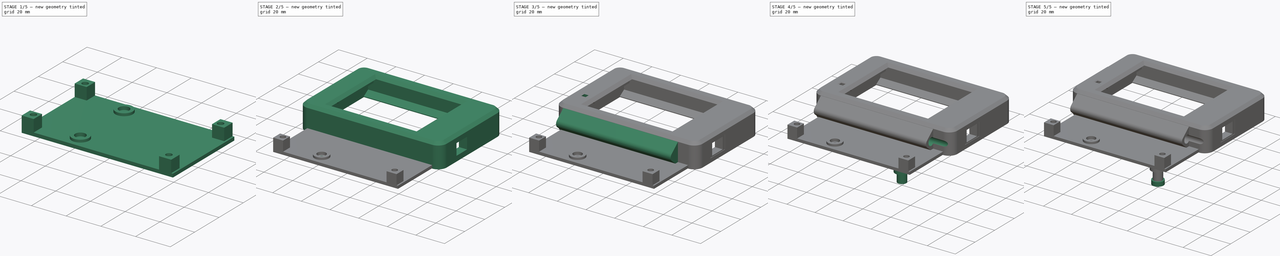
[diagram: build sequence overview — one tinted view per stage of 5, left to right]
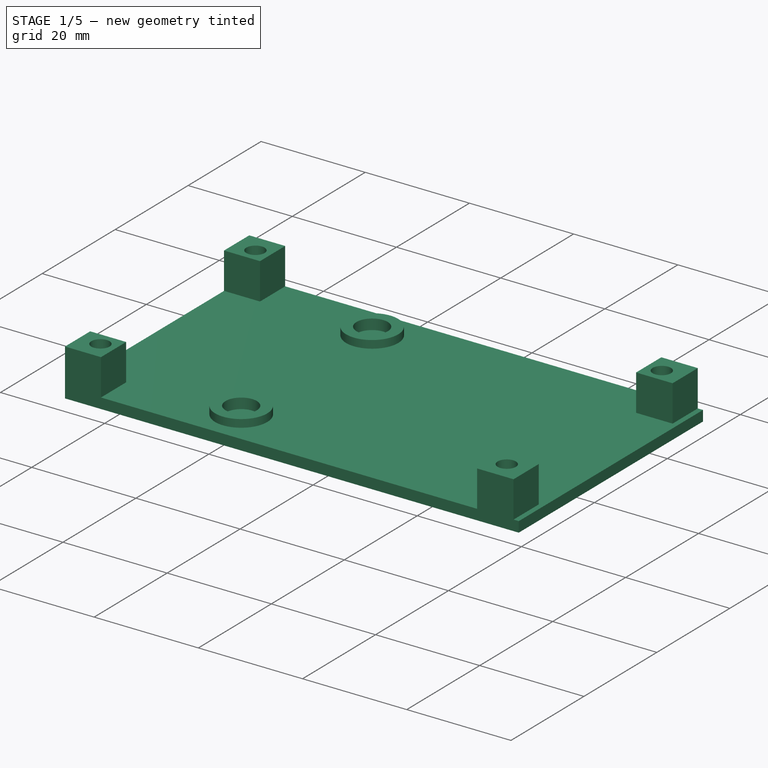
[diagram: stage 1 of 5 — iso view after this stage's code; geometry added in this stage tinted green]
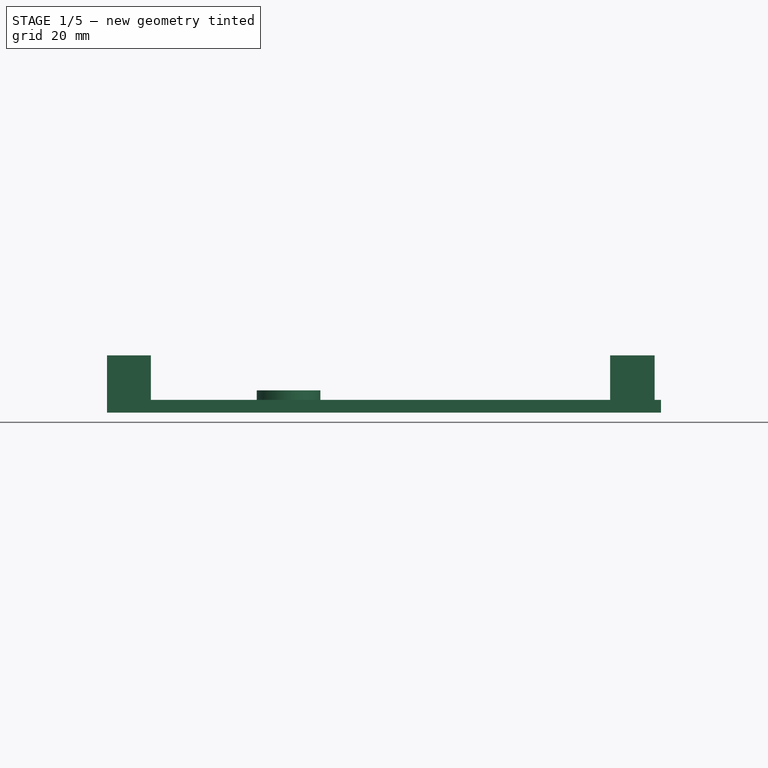
[diagram: stage 1 of 5 — front view after this stage's code; geometry added in this stage tinted green]
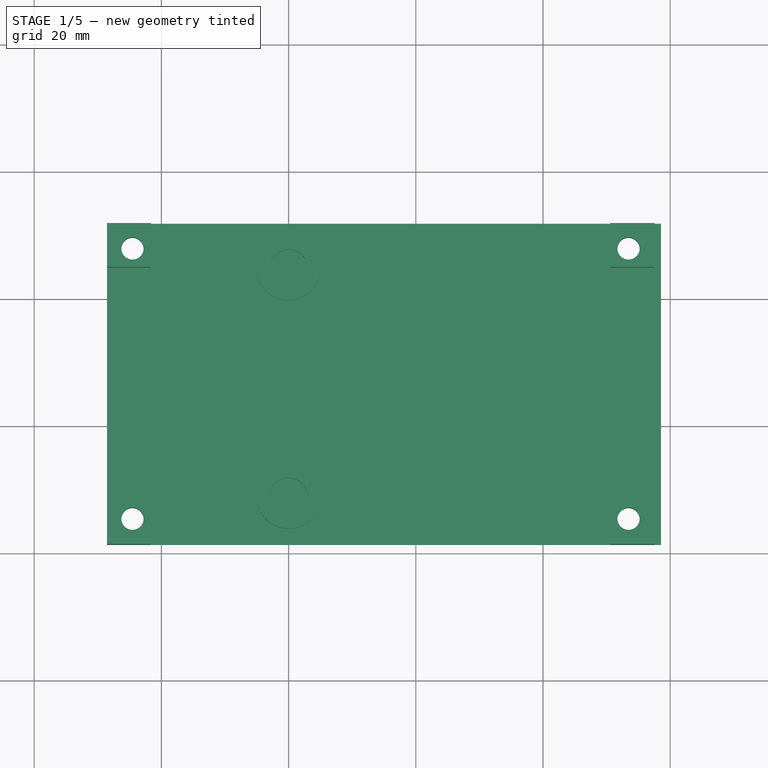
[diagram: stage 1 of 5 — top view after this stage's code; geometry added in this stage tinted green]
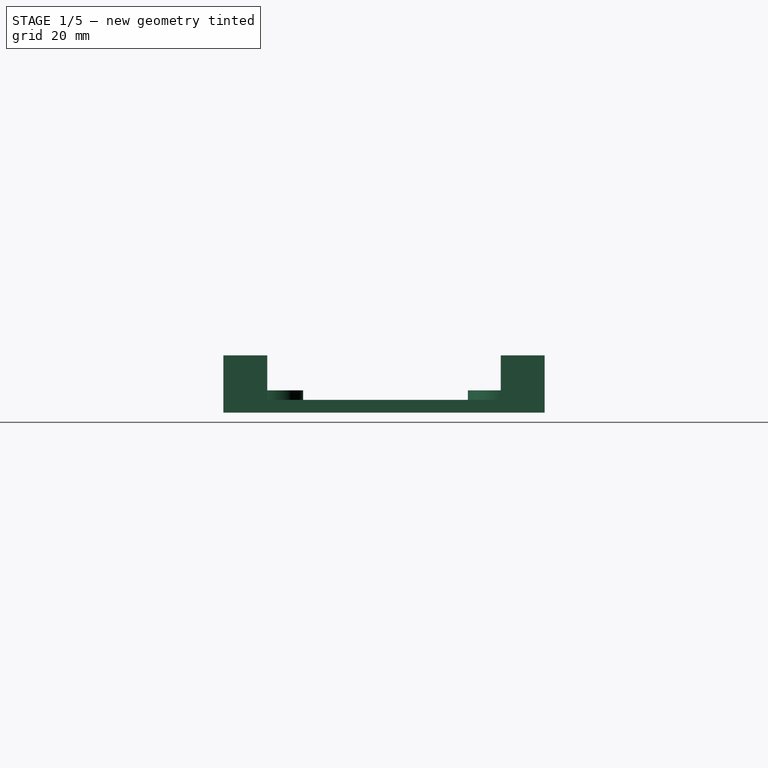
[diagram: stage 1 of 5 — right view after this stage's code; geometry added in this stage tinted green]
FCSTD DOCUMENT  (FreeCAD 0.22R36331 (Git))
Label: ender 3 v3 se cyd mount
License: All rights reserved
LicenseURL: http://en.wikipedia.org/wiki/All_rights_reserved
objects: Sketcher::SketchObject×14, PartDesign::Pocket×9, PartDesign::Pad×5, Part::Feature×5, PartDesign::Body×3, PartDesign::FeatureBase×2, PartDesign::Chamfer×1
note: 54 computed .brp shape members not serialized (recipe doc carries the construction recipe); baked Part::Feature solids carry a one-line shape summary decoded from their .brp

FEATURE [PartDesign::Body] Body009  label="top"
  BaseFeature = -> base
  Group = -> [BaseFeature,Sketch,Pocket,Sketch034,Pocket021,Sketch035,Pocket022,Sketch036,Sketch037,Pad013,Pocket025,Chamfer002]
  Origin = -> Origin009
  Placement = pos=(0,0,0) rot=(1,0,0;3.14159rad)
  Tip = -> Chamfer002
FEATURE [Part::Feature] base002  label="tt_base_step001"
  shape: bbox 87.1 x 50.5 x 9 mm, 52 faces (baked)
FEATURE [Sketcher::SketchObject] Sketch044
  AttachmentOffset = pos=(0,0,1.5) rot=(0,0,1;0rad)
  FullyConstrained = true
  MapMode = 5
  Placement = pos=(0,0,13.5) rot=(0,0,1;0rad)
  expr: .AttachmentOffset.Base.z = Pad015.Length
  expr: Constraints[4] = Sketch043.Constraints.Between
  expr: Constraints[5] = Sketch043.Constraints.FromCenter
  expr: Constraints[6] = Sketch043.Constraints.Center
  sketch-geometry (3):
    g0: Circle CenterX=-40 CenterY=24.78 CenterZ=0 NormalX=0 NormalY=0 NormalZ=1 AngleXU=0 Radius=3
    g1: Circle CenterX=-40 CenterY=-11.12 CenterZ=0 NormalX=0 NormalY=0 NormalZ=1 AngleXU=0 Radius=3
    g2: GeomPoint X=-40 Y=6.83 Z=0
  constraints (7):
    c: Equal(g1,g0)
    c: Diameter(g0) = 6
    c: Vertical(g0,g1)
    c: Symmetric(g0,g1,g2)
    c: DistanceY(g1,g0) = 35.9
    c: DistanceX(g2,g-1) = 40
    c: DistanceY(g-1,g2) = 6.83
FEATURE [Sketcher::SketchObject] Sketch045
  FullyConstrained = true
  MapMode = 5
  Placement = pos=(0,0,12) rot=(0,0,1;0rad)
  expr: Constraints[4] = Sketch043.Constraints.Between
  expr: Constraints[5] = Sketch043.Constraints.Center
  expr: Constraints[6] = Sketch043.Constraints.FromCenter
  sketch-geometry (3):
    g0: Circle CenterX=-40 CenterY=24.78 CenterZ=0 NormalX=0 NormalY=0 NormalZ=1 AngleXU=0 Radius=1.75
    g1: Circle CenterX=-40 CenterY=-11.12 CenterZ=0 NormalX=0 NormalY=0 NormalZ=1 AngleXU=0 Radius=1.75
    g2: GeomPoint X=-40 Y=6.83 Z=0
  constraints (7):
    c: Equal(g1,g0)
    c: Diameter(g0) = 3.5
    c: Symmetric(g0,g1,g2)
    c: Vertical(g0,g2)
    c: DistanceY(g1,g0) = 35.9
    c: DistanceY(g-1,g2) = 6.83
    c: DistanceX(g2,g-1) = 40
FEATURE [Part::Feature] base003  label="tt_base_step002"
  shape: bbox 87.1 x 50.5 x 9 mm, 52 faces (baked)
FEATURE [PartDesign::FeatureBase] BaseFeature009
  BaseFeature = -> base003
  Suppressed = false
FEATURE [Sketcher::SketchObject] Sketch043
  AttachmentSupport = -> [BaseFeature009]
  ExternalGeometry = -> [BaseFeature009]
  FullyConstrained = true
  MapMode = 5
  Placement = pos=(0,0,12) rot=(0,0,1;0rad)
  sketch-geometry (3):
    g0: Circle CenterX=-40 CenterY=24.78 CenterZ=0 NormalX=0 NormalY=0 NormalZ=1 AngleXU=0 Radius=5
    g1: Circle CenterX=-40 CenterY=-11.12 CenterZ=0 NormalX=0 NormalY=0 NormalZ=1 AngleXU=0 Radius=5
    g2: GeomPoint X=-40 Y=6.83 Z=0
  constraints (7):
    c: DistanceY(g1,g0) = 35.9  'Between'
    c: Equal(g1,g0)
    c: Diameter(g0) = 10
    c: Symmetric(g0,g1,g2)
    c: Vertical(g0,g2)
    c: DistanceX(g2,g-1) = 40  'FromCenter'
    c: DistanceY(g-1,g2) = 6.83  'Center'
FEATURE [PartDesign::Pad] Pad015
  BaseFeature = -> BaseFeature009
  Direction = (0,0,1)
  Length = 1.5
  Length2 = 10
  Profile = -> Sketch043
  ReferenceAxis = -> Sketch043 [N_Axis]
  Suppressed = false
  Type = 0
FEATURE [PartDesign::Pocket] Pocket029
  BaseFeature = -> Pad015
  Direction = (0,0,-1)
  Length = 2
  Length2 = 5
  Profile = -> Sketch044
  ReferenceAxis = -> Sketch044 [N_Axis]
  Suppressed = false
  Type = 0
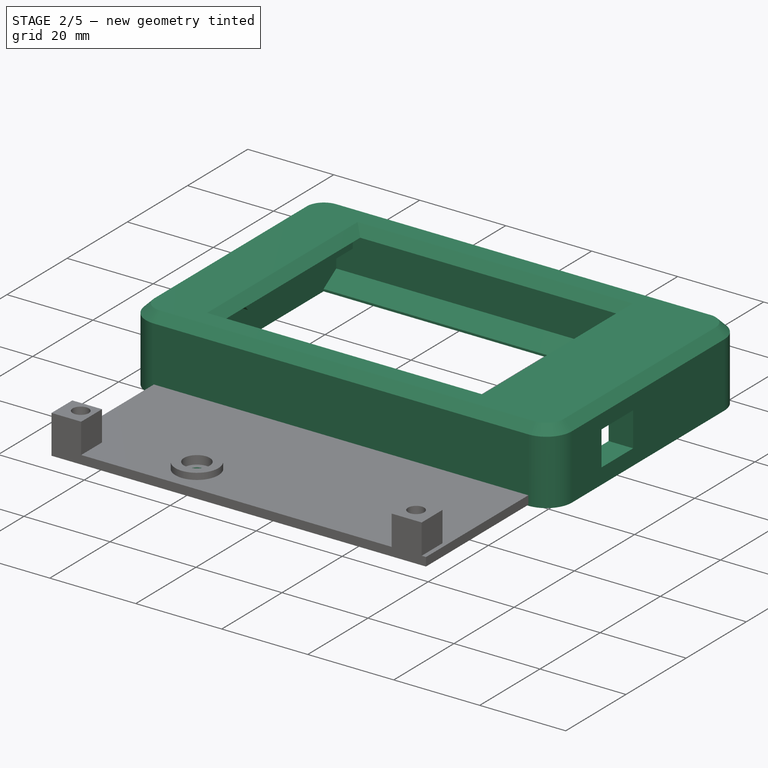
[diagram: stage 2 of 5 — iso view after this stage's code; geometry added in this stage tinted green]
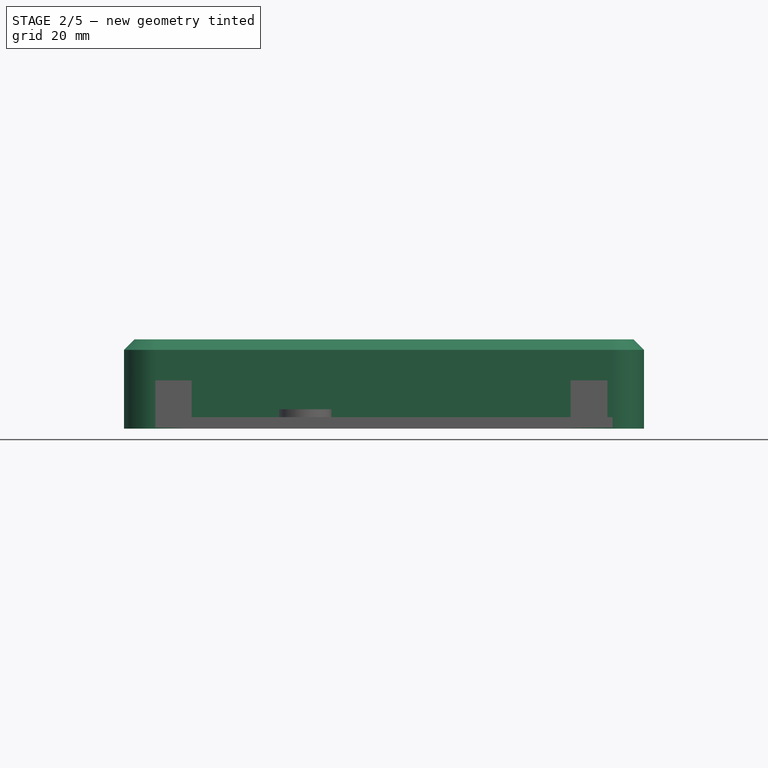
[diagram: stage 2 of 5 — front view after this stage's code; geometry added in this stage tinted green]
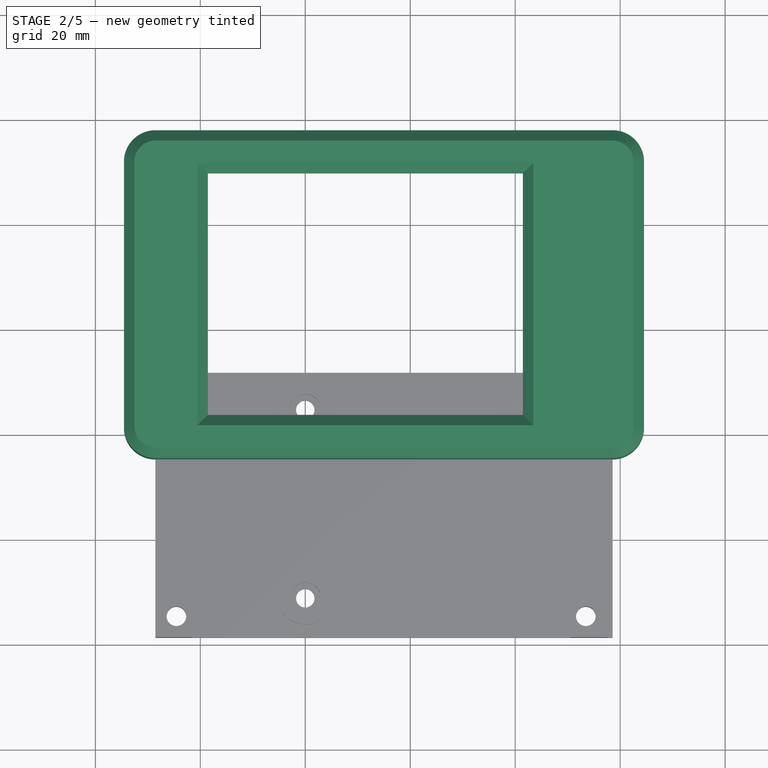
[diagram: stage 2 of 5 — top view after this stage's code; geometry added in this stage tinted green]
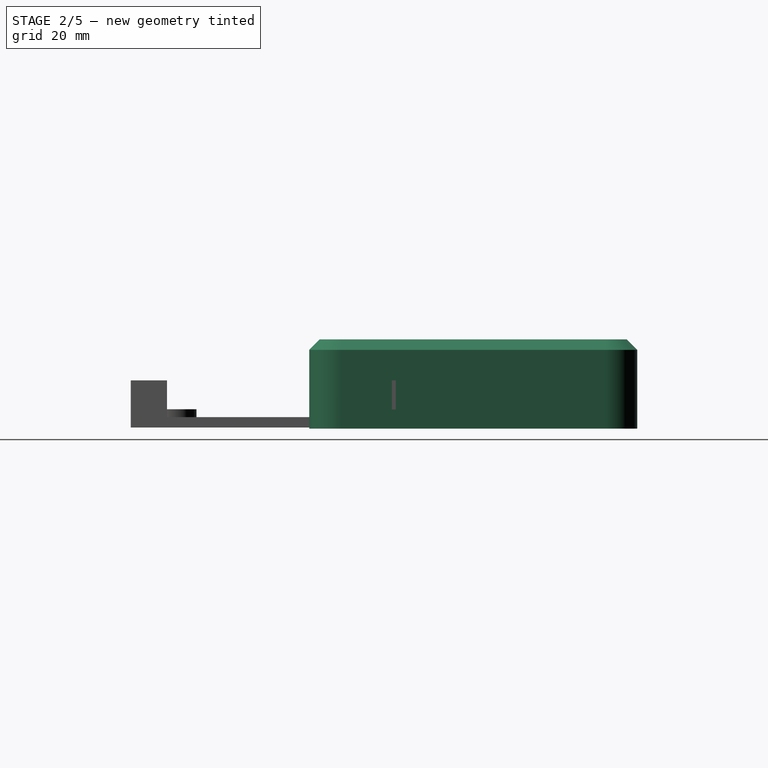
[diagram: stage 2 of 5 — right view after this stage's code; geometry added in this stage tinted green]
FEATURE [PartDesign::Body] Body  label="peg"
  Group = -> [Sketch008,Pad,Sketch009,Pad002,Sketch010,Pad003,Sketch011,Pocket013,Sketch027,Pocket016]
  Origin = -> Origin
  Placement = pos=(0,0,0) rot=(1,0,0;3.14159rad)
  Tip = -> Pocket016
FEATURE [Part::Feature] base  label="tt_top_step"
  shape: bbox 99.1 x 62.5 x 17 mm, 91 faces (baked)
FEATURE [Part::Feature] base001  label="tt_base_step"
  shape: bbox 87.1 x 50.5 x 9 mm, 52 faces (baked)
FEATURE [PartDesign::FeatureBase] BaseFeature
  BaseFeature = -> base
  Suppressed = false
FEATURE [Sketcher::SketchObject] Sketch
  AttachmentSupport = -> [BaseFeature]
  ExternalGeometry = -> [BaseFeature]
  FullyConstrained = true
  MapMode = 5
  Placement = pos=(18.85,0,0) rot=(0.57735,-0.57735,-0.57735;2.0944rad)
  sketch-geometry (5):
    g0: LineSegment StartX=-41.6 StartY=21.45 StartZ=0 EndX=-41.6 EndY=13.45 EndZ=0
    g1: LineSegment StartX=-41.6 StartY=13.45 StartZ=0 EndX=-31.1 EndY=13.45 EndZ=0
    g2: LineSegment StartX=-31.1 StartY=13.45 StartZ=0 EndX=-31.1 EndY=21.45 EndZ=0
    g3: LineSegment StartX=-31.1 StartY=21.45 StartZ=0 EndX=-41.6 EndY=21.45 EndZ=0
    g4: GeomPoint X=-36.35 Y=17.45 Z=0
  constraints (13):
    c: Coincident(g0,g1)
    c: Coincident(g1,g2)
    c: Coincident(g2,g3)
    c: Coincident(g3,g0)
    c: Vertical(g0)
    c: Vertical(g2)
    c: Horizontal(g1)
    c: Horizontal(g3)
    c: DistanceX(g1,g1) = 10.5
    c: DistanceY(g0,g0) = 8
    c: Symmetric(g0,g1,g4)
    c: DistanceX(g4,g-4) = 19.5
    c: DistanceY(g4,g-3) = 3.15
FEATURE [PartDesign::Pocket] Pocket
  BaseFeature = -> BaseFeature
  Direction = (1,0,0)
  Length = 5
  Length2 = 5
  Profile = -> Sketch
  ReferenceAxis = -> Sketch [N_Axis]
  Suppressed = false
  Type = 1
FEATURE [PartDesign::Pocket] Pocket030
  BaseFeature = -> Pocket029
  Direction = (0,0,-1)
  Length = 5
  Length2 = 5
  Profile = -> Sketch045
  ReferenceAxis = -> Sketch045 [N_Axis]
  Suppressed = false
  Type = 0
FEATURE [Sketcher::SketchObject] Sketch046
  AttachmentOffset = pos=(0,0,7) rot=(0,0,1;0rad)
  AttachmentSupport = -> [Pad015]
  FullyConstrained = false
  MapMode = 5
  Placement = pos=(0,0,19) rot=(0,0,1;0rad)
  sketch-geometry (4):
    g0: Circle CenterX=-64.55 CenterY=27.85 CenterZ=0 NormalX=0 NormalY=0 NormalZ=1 AngleXU=0 Radius=1.875
    g1: Circle CenterX=-64.55 CenterY=-14.65 CenterZ=0 NormalX=0 NormalY=0 NormalZ=1 AngleXU=0 Radius=1.875
    g2: Circle CenterX=13.45 CenterY=27.85 CenterZ=0 NormalX=0 NormalY=0 NormalZ=1 AngleXU=0 Radius=1.875
    g3: Circle CenterX=13.45 CenterY=-14.65 CenterZ=0 NormalX=0 NormalY=0 NormalZ=1 AngleXU=0 Radius=1.875
  constraints (4):
    c: Equal(g3,g2)
    c: Equal(g2,g0)
    c: Equal(g0,g1)
    c: Diameter(g0) = 3.75
FEATURE [PartDesign::Pocket] Pocket031
  BaseFeature = -> Pocket030
  Direction = (0,0,-1)
  Length = 5
  Length2 = 5
  Profile = -> Sketch046
  ReferenceAxis = -> Sketch046 [N_Axis]
  Refine = true
  Suppressed = false
  Type = 1
FEATURE [PartDesign::Body] Body011  label="base"
  BaseFeature = -> base003
  Group = -> [BaseFeature009,Sketch043,Pad015,Sketch044,Sketch045,Sketch046,Pocket029,Pocket030,Pocket031]
  Origin = -> Origin011
  Tip = -> Pocket031
FEATURE [Part::Feature] base004  label="tt_base_step003"
  shape: bbox 87.1 x 50.5 x 9 mm, 52 faces (baked)
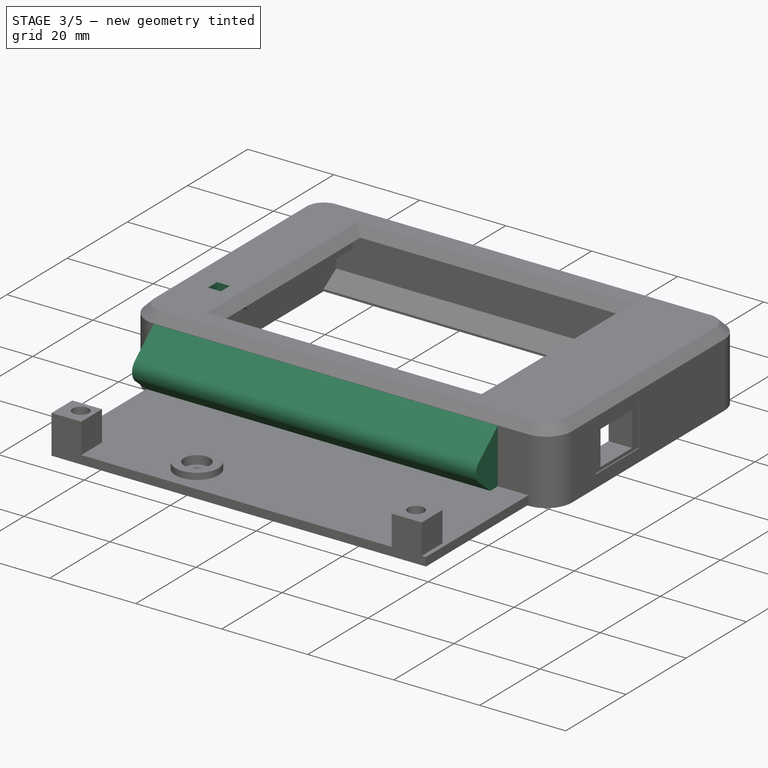
[diagram: stage 3 of 5 — iso view after this stage's code; geometry added in this stage tinted green]
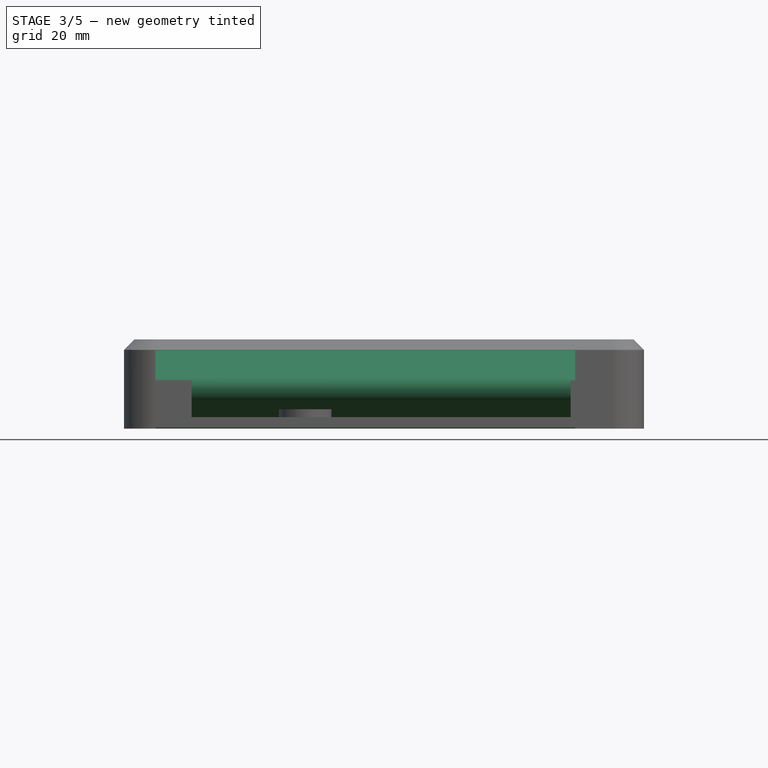
[diagram: stage 3 of 5 — front view after this stage's code; geometry added in this stage tinted green]
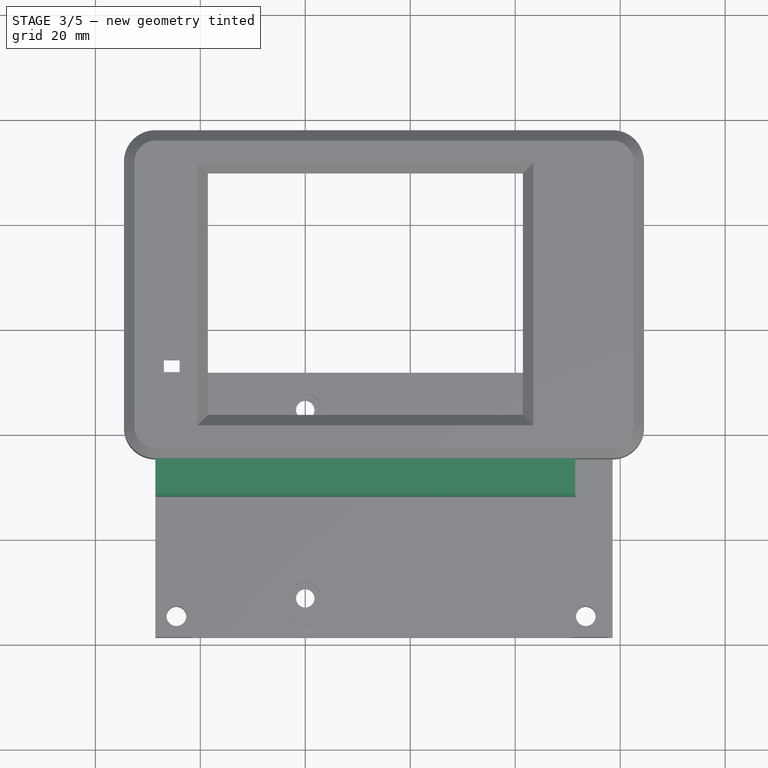
[diagram: stage 3 of 5 — top view after this stage's code; geometry added in this stage tinted green]
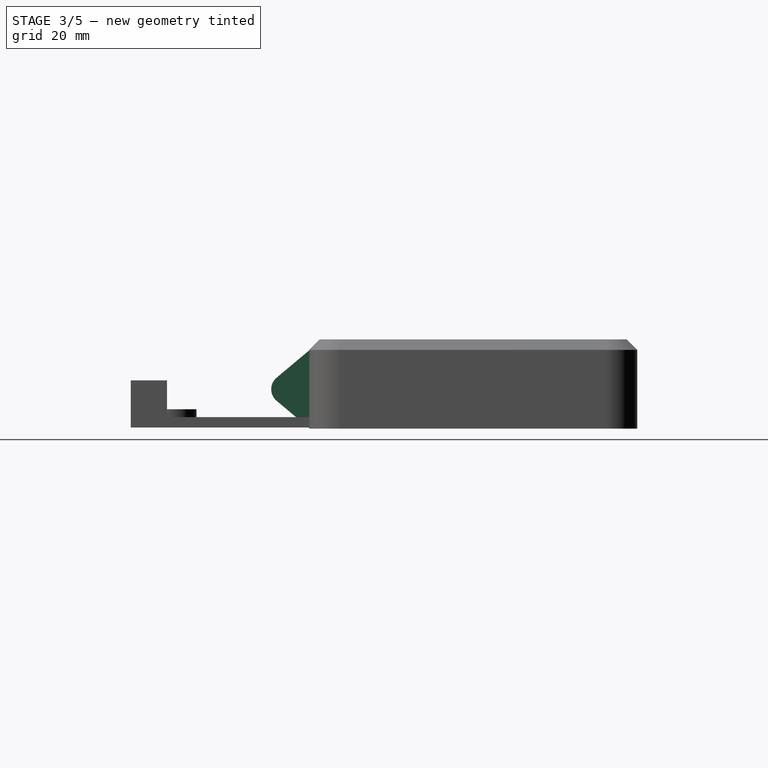
[diagram: stage 3 of 5 — right view after this stage's code; geometry added in this stage tinted green]
FEATURE [Sketcher::SketchObject] Sketch034
  AttachmentSupport = -> [Pocket]
  ExternalGeometry = -> [Pocket]
  FullyConstrained = true
  MapMode = 5
  Placement = pos=(24.55,0,0) rot=(0.57735,0.57735,0.57735;2.0944rad)
  sketch-geometry (5):
    g0: GeomPoint X=36.35 Y=17.45 Z=0
    g1: LineSegment StartX=29.1 StartY=22.2 StartZ=0 EndX=29.1 EndY=12.7 EndZ=0
    g2: LineSegment StartX=29.1 StartY=12.7 StartZ=0 EndX=43.6 EndY=12.7 EndZ=0
    g3: LineSegment StartX=43.6 StartY=12.7 StartZ=0 EndX=43.6 EndY=22.2 EndZ=0
    g4: LineSegment StartX=43.6 StartY=22.2 StartZ=0 EndX=29.1 EndY=22.2 EndZ=0
  constraints (12):
    c: Symmetric(g-3,g-4,g0)
    c: Coincident(g1,g2)
    c: Coincident(g2,g3)
    c: Coincident(g3,g4)
    c: Coincident(g4,g1)
    c: Vertical(g1)
    c: Vertical(g3)
    c: Horizontal(g2)
    c: Horizontal(g4)
    c: DistanceX(g2,g2) = 14.5
    c: DistanceY(g3,g3) = 9.5
    c: Symmetric(g2,g1,g0)
FEATURE [PartDesign::Pocket] Pocket021
  BaseFeature = -> Pocket
  Direction = (-1,0,0)
  Length = 0.25
  Length2 = 5
  Profile = -> Sketch034
  ReferenceAxis = -> Sketch034 [N_Axis]
  Suppressed = false
  Type = 0
FEATURE [Sketcher::SketchObject] Sketch035
  AttachmentSupport = -> [Pocket021]
  ExternalGeometry = -> [Pocket021]
  FullyConstrained = true
  MapMode = 5
  Placement = pos=(0,0,22.6) rot=(1,0,0;3.14159rad)
  sketch-geometry (5):
    g0: LineSegment StartX=-66.95 StartY=-31.05 StartZ=0 EndX=-66.95 EndY=-34.05 EndZ=0
    g1: LineSegment StartX=-66.95 StartY=-34.05 StartZ=0 EndX=-63.95 EndY=-34.05 EndZ=0
    g2: LineSegment StartX=-63.95 StartY=-34.05 StartZ=0 EndX=-63.95 EndY=-31.05 EndZ=0
    g3: LineSegment StartX=-63.95 StartY=-31.05 StartZ=0 EndX=-66.95 EndY=-31.05 EndZ=0
    g4: GeomPoint X=-65.45 Y=-32.55 Z=0
  constraints (12):
    c: Coincident(g0,g1)
    c: Coincident(g1,g2)
    c: Coincident(g2,g3)
    c: Coincident(g3,g0)
    c: Vertical(g0)
    c: Vertical(g2)
    c: Horizontal(g1)
    c: Horizontal(g3)
    c: Symmetric(g-5,g-4,g4)
    c: Symmetric(g0,g1,g4)
    c: DistanceY(g2,g2) = 3
    c: Equal(g1,g2)
FEATURE [PartDesign::Pocket] Pocket022
  BaseFeature = -> Pocket021
  Direction = (0,0,1)
  Length = 5
  Length2 = 5
  Profile = -> Sketch035
  ReferenceAxis = -> Sketch035 [N_Axis]
  Suppressed = false
  Type = 1
FEATURE [Sketcher::SketchObject] Sketch036
  AttachmentOffset = pos=(0,0,-6) rot=(0,0,1;0rad)
  AttachmentSupport = -> [Pocket022]
  ExternalGeometry = -> [Pocket022]
  FullyConstrained = true
  MapMode = 5
  Placement = pos=(-68.55,0,0) rot=(0.57735,-0.57735,-0.57735;2.0944rad)
  sketch-geometry (5):
    g0: LineSegment StartX=-15.45 StartY=24.8 StartZ=0 EndX=-15.45 EndY=9.8 EndZ=0
    g1: LineSegment StartX=-15.45 StartY=9.8 StartZ=0 EndX=-9.13654 EndY=15.0976 EndZ=0
    g2: LineSegment StartX=-9.13654 StartY=19.5024 StartZ=0 EndX=-15.45 EndY=24.8 EndZ=0
    g3: ArcOfCircle CenterX=-10.9846 CenterY=17.3 CenterZ=0 NormalX=0 NormalY=0 NormalZ=1 AngleXU=0 Radius=2.875 StartAngle=5.41052 EndAngle=7.15585
    g4: GeomPoint X=-6.51185 Y=17.3 Z=0
  constraints (13):
    c: PointOnObject(g0,g-4)
    c: PointOnObject(g0,g-5)
    c: Vertical(g0)
    c: Coincident(g0,g1)
    c: Coincident(g2,g0)
    c: Angle(g1,g0) = 0.872665
    c: Angle(g0,g2) = 0.872665
    c: PointOnObject(g4,g2)
    c: PointOnObject(g4,g1)
    c: Tangent(g2,g3) = -1.5708
    c: Tangent(g1,g3) = -1.5708
    c: Radius(g3) = 2.875
    c: DistanceX(g-5,g0) = -0.1
FEATURE [PartDesign::Pad] Pad013
  BaseFeature = -> Pocket022
  Direction = (-1,0,0)
  Length = 80
  Length2 = 10
  Profile = -> Sketch036
  ReferenceAxis = -> Sketch036 [N_Axis]
  Reversed = true
  Suppressed = false
  Type = 0
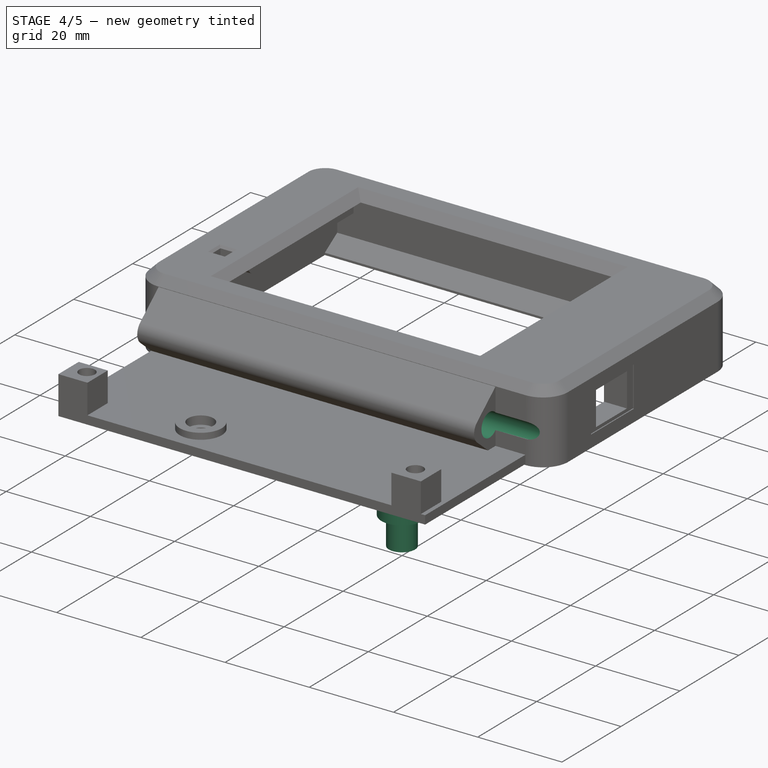
[diagram: stage 4 of 5 — iso view after this stage's code; geometry added in this stage tinted green]
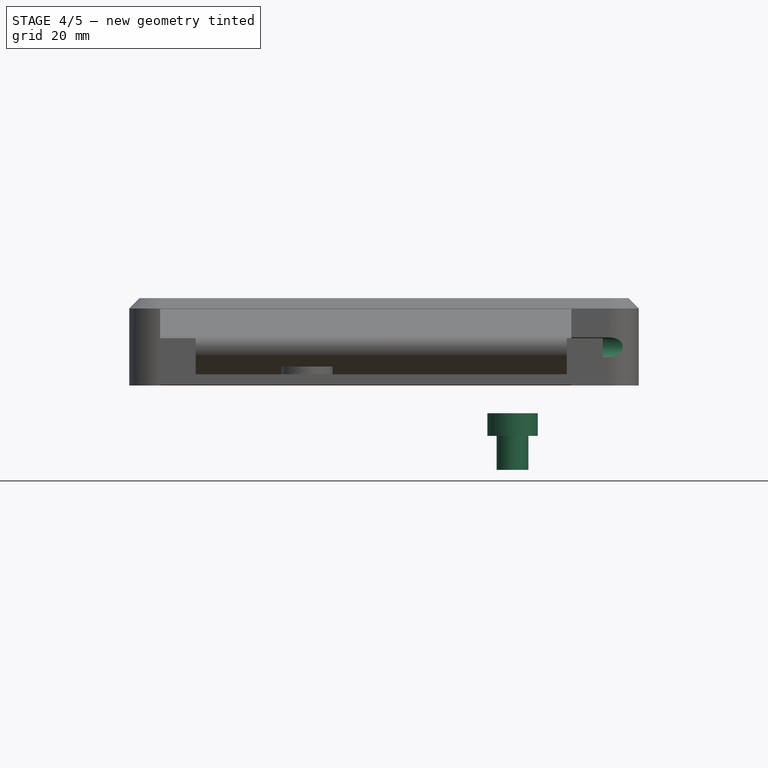
[diagram: stage 4 of 5 — front view after this stage's code; geometry added in this stage tinted green]
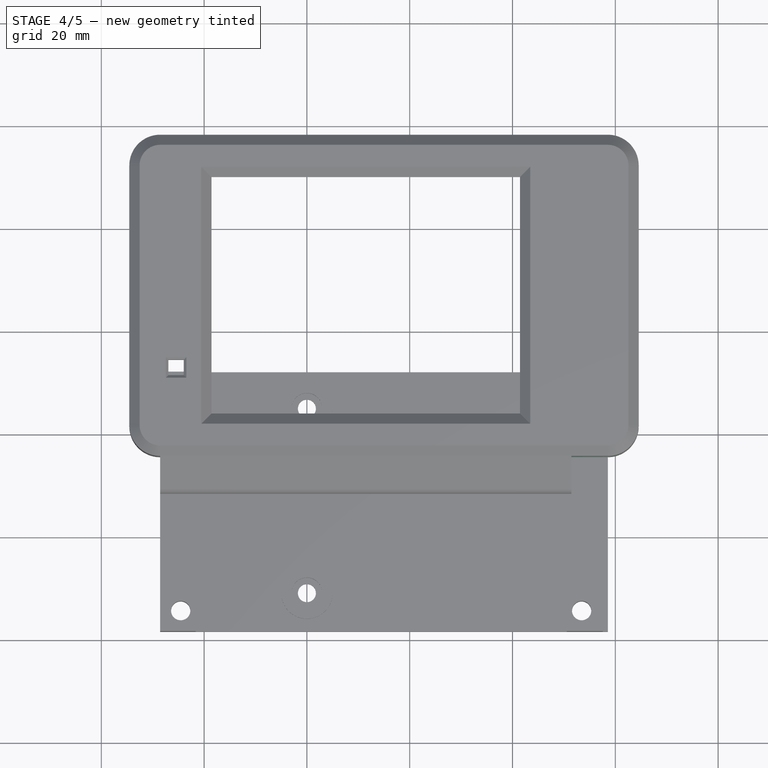
[diagram: stage 4 of 5 — top view after this stage's code; geometry added in this stage tinted green]
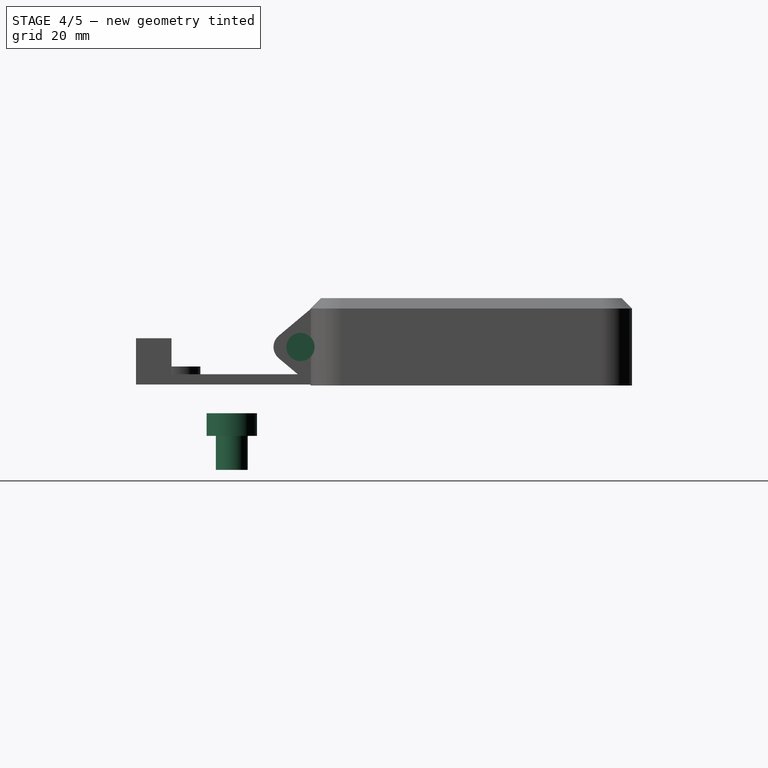
[diagram: stage 4 of 5 — right view after this stage's code; geometry added in this stage tinted green]
FEATURE [Sketcher::SketchObject] Sketch008
  AttachmentSupport = -> [XY_Plane]
  FullyConstrained = true
  MapMode = 5
  sketch-geometry (1):
    g0: Circle CenterX=0 CenterY=0 CenterZ=0 NormalX=0 NormalY=0 NormalZ=1 AngleXU=0 Radius=4.9
  constraints (2):
    c: Coincident(g0,g-1)
    c: Diameter(g0) = 9.8
FEATURE [PartDesign::Pad] Pad
  Direction = (0,0,1)
  Length = 4.4
  Length2 = 10
  Profile = -> Sketch008
  ReferenceAxis = -> Sketch008 [N_Axis]
  Suppressed = false
  Type = 0
FEATURE [Sketcher::SketchObject] Sketch009
  AttachmentSupport = -> [Pad]
  FullyConstrained = true
  MapMode = 5
  Placement = pos=(0,0,0) rot=(1,0,0;3.14159rad)
  sketch-geometry (1):
    g0: Circle CenterX=0 CenterY=0 CenterZ=0 NormalX=0 NormalY=0 NormalZ=1 AngleXU=0 Radius=3.1
  constraints (2):
    c: Coincident(g0,g-1)
    c: Diameter(g0) = 6.2
FEATURE [PartDesign::Pad] Pad002
  BaseFeature = -> Pad
  Direction = (0,0,-1)
  Length = 6.6
  Length2 = 10
  Profile = -> Sketch009
  ReferenceAxis = -> Sketch009 [N_Axis]
  Suppressed = false
  Type = 0
FEATURE [Sketcher::SketchObject] Sketch037
  AttachmentOffset = pos=(0,0,-2) rot=(0,0,1;0rad)
  AttachmentSupport = -> [Pad013]
  ExternalGeometry = -> [Pad013]
  FullyConstrained = true
  MapMode = 5
  Placement = pos=(-66.55,0,0) rot=(0.57735,-0.57735,-0.57735;2.0944rad)
  sketch-geometry (2):
    g0: Circle CenterX=-13.35 CenterY=17.3 CenterZ=0 NormalX=0 NormalY=0 NormalZ=1 AngleXU=0 Radius=2.75
    g1: GeomPoint X=-15.35 Y=17.3 Z=0
  constraints (4):
    c: Diameter(g0) = 5.5
    c: Symmetric(g-3,g-3,g1)
    c: Horizontal(g0,g1)
    c: DistanceX(g-3,g0) = 2
FEATURE [PartDesign::Pocket] Pocket025
  BaseFeature = -> Pad013
  Direction = (1,0,0)
  Length = 5
  Length2 = 5
  Profile = -> Sketch037
  ReferenceAxis = -> Sketch037 [N_Axis]
  Suppressed = false
  Type = 1
FEATURE [PartDesign::Chamfer] Chamfer002
  Angle = 45
  Base = -> Pocket025 [Edge164,Edge163,Edge161,Edge162]
  BaseFeature = -> Pocket025
  ChamferType = 0
  FlipDirection = false
  Refine = true
  Size = 0.5
  Size2 = 1
  SupportTransform = false
  Suppressed = false
  UseAllEdges = false
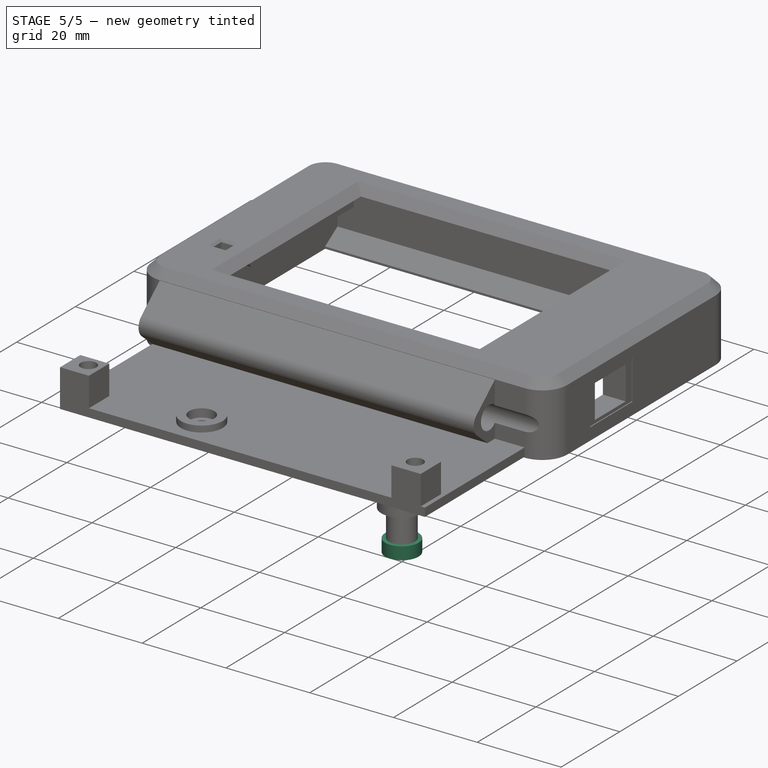
[diagram: stage 5 of 5 — iso view after this stage's code; geometry added in this stage tinted green]
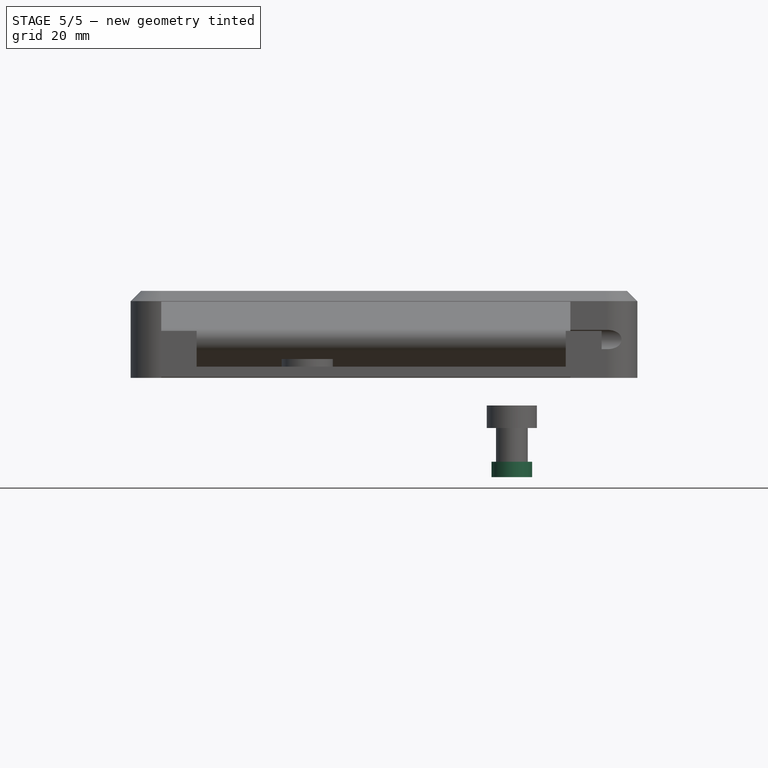
[diagram: stage 5 of 5 — front view after this stage's code; geometry added in this stage tinted green]
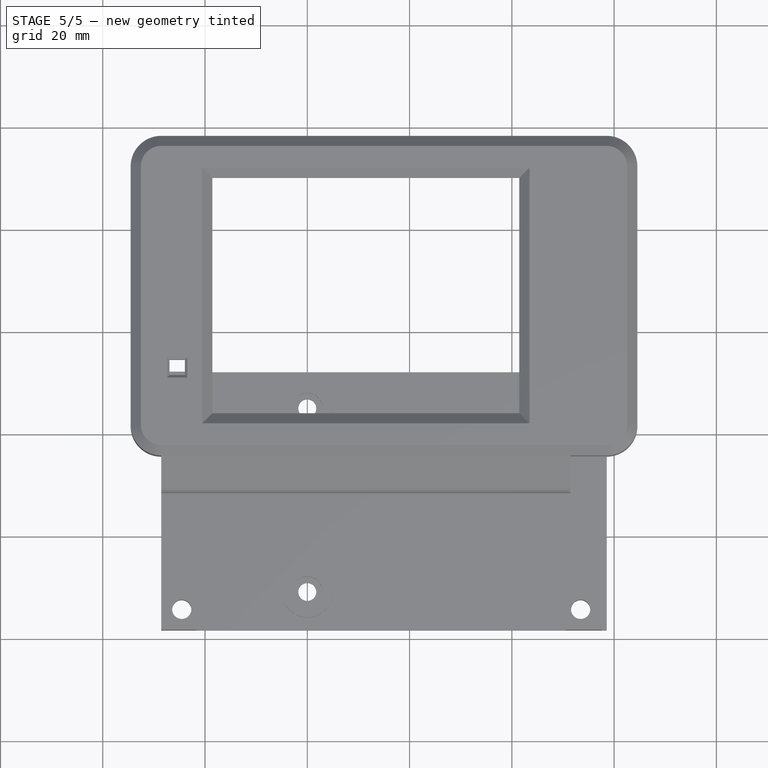
[diagram: stage 5 of 5 — top view after this stage's code; geometry added in this stage tinted green]
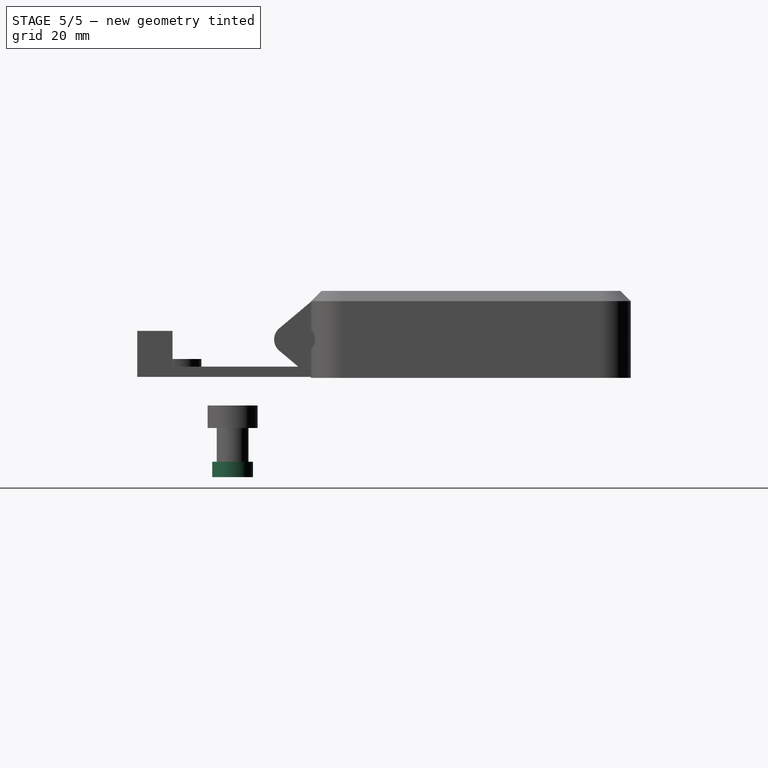
[diagram: stage 5 of 5 — right view after this stage's code; geometry added in this stage tinted green]
FEATURE [Sketcher::SketchObject] Sketch010
  AttachmentSupport = -> [Pad002]
  FullyConstrained = true
  MapMode = 5
  Placement = pos=(0,0,-6.6) rot=(1,0,0;3.14159rad)
  sketch-geometry (1):
    g0: Circle CenterX=0 CenterY=0 CenterZ=0 NormalX=0 NormalY=0 NormalZ=1 AngleXU=0 Radius=3.975
  constraints (2):
    c: Coincident(g0,g-1)
    c: Diameter(g0) = 7.95
FEATURE [PartDesign::Pad] Pad003
  BaseFeature = -> Pad002
  Direction = (0,0,-1)
  Length = 3
  Length2 = 10
  Profile = -> Sketch010
  ReferenceAxis = -> Sketch010 [N_Axis]
  Suppressed = false
  Type = 0
FEATURE [Sketcher::SketchObject] Sketch011
  AttachmentSupport = -> [Pad003]
  FullyConstrained = true
  MapMode = 5
  Placement = pos=(0,0,4.4) rot=(0,0,1;0rad)
  sketch-geometry (1):
    g0: Circle CenterX=0 CenterY=0 CenterZ=0 NormalX=0 NormalY=0 NormalZ=1 AngleXU=0 Radius=1.45
  constraints (2):
    c: Coincident(g0,g-1)
    c: Diameter(g0) = 2.9
FEATURE [PartDesign::Pocket] Pocket013
  BaseFeature = -> Pad003
  Direction = (0,0,-1)
  Length = 12
  Length2 = 5
  Profile = -> Sketch011
  ReferenceAxis = -> Sketch011 [N_Axis]
  Suppressed = false
  Type = 0
FEATURE [Sketcher::SketchObject] Sketch027
  AttachmentSupport = -> [Pocket013]
  FullyConstrained = true
  MapMode = 5
  Placement = pos=(0,0,4.4) rot=(0,0,1;0rad)
  sketch-geometry (1):
    g0: Circle CenterX=0 CenterY=0 CenterZ=0 NormalX=0 NormalY=0 NormalZ=1 AngleXU=0 Radius=1.75
  constraints (2):
    c: Coincident(g0,g-1)
    c: Diameter(g0) = 3.5
FEATURE [PartDesign::Pocket] Pocket016
  BaseFeature = -> Pocket013
  Direction = (0,0,-1)
  Length = 5
  Length2 = 5
  Profile = -> Sketch027
  ReferenceAxis = -> Sketch027 [N_Axis]
  Suppressed = false
  Type = 0
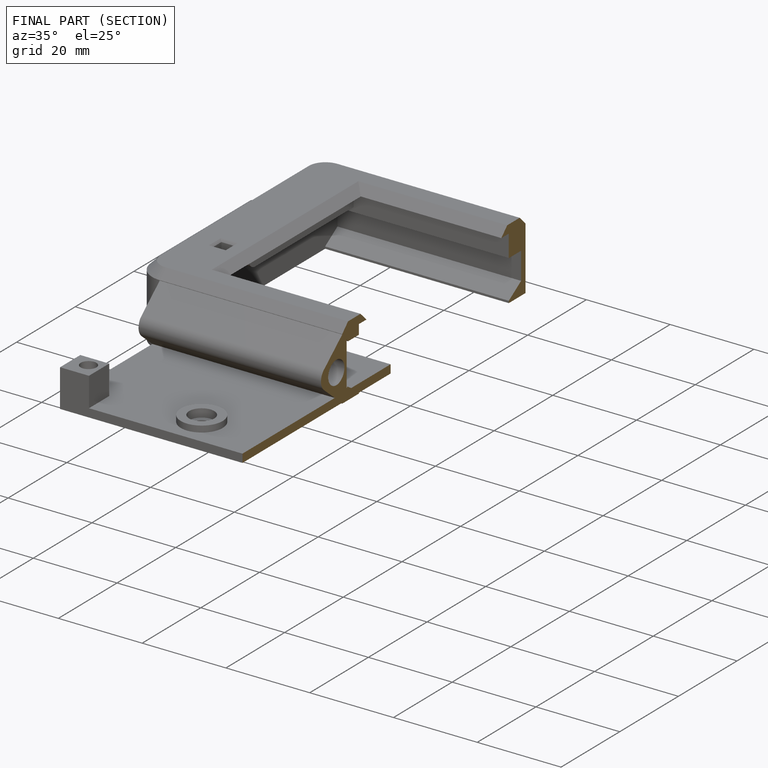
[diagram: finished part — half-section view (interior)]
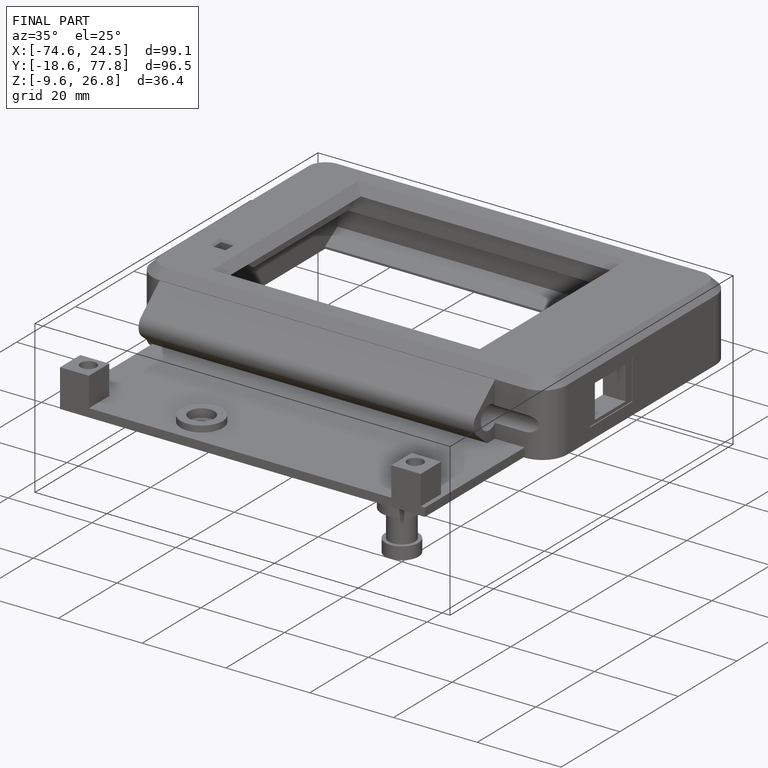
[diagram: finished part — iso view with bounding-box wireframe]
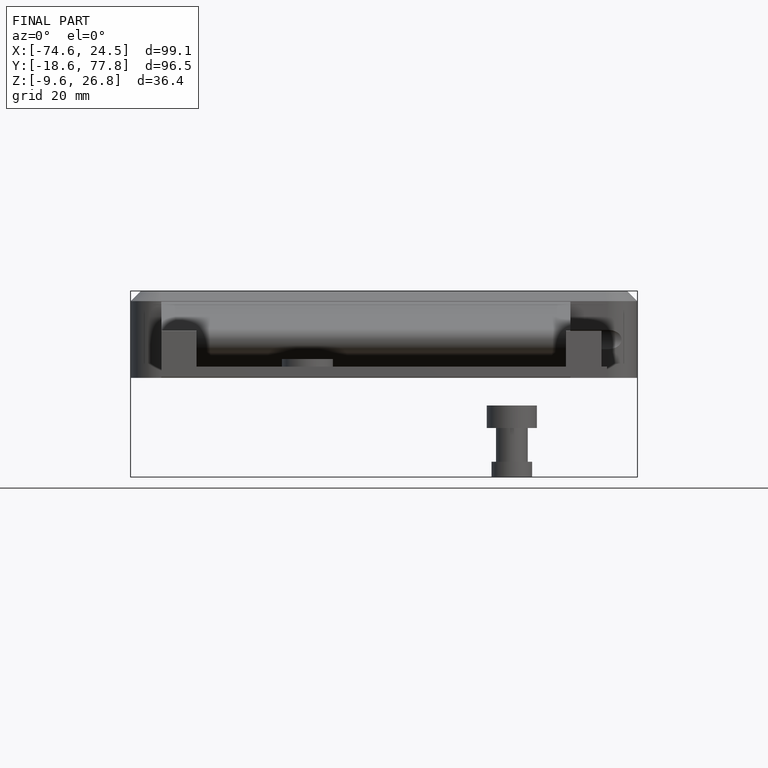
[diagram: finished part — front view with bounding-box wireframe]
